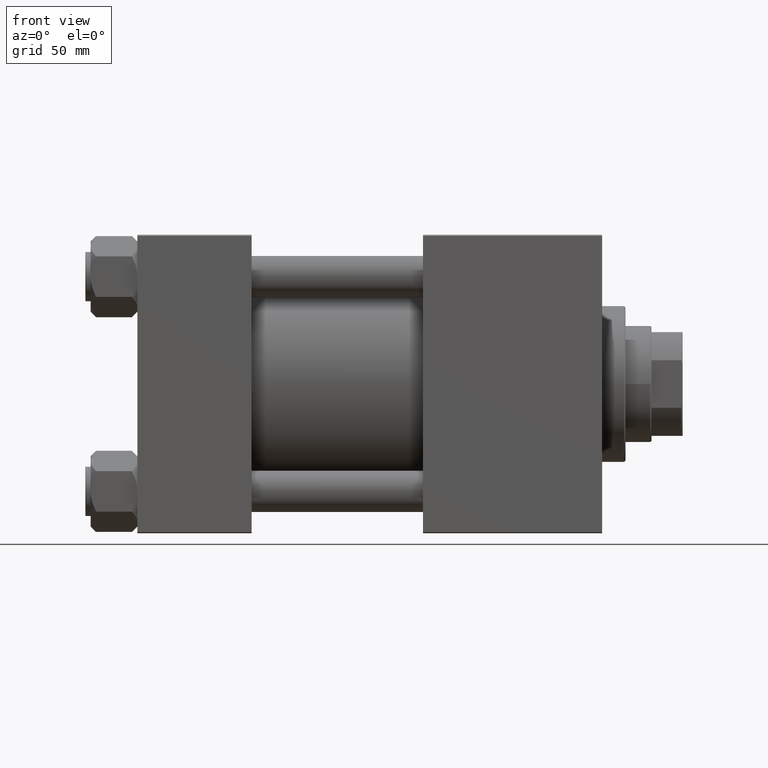
[diagram: clean part render]
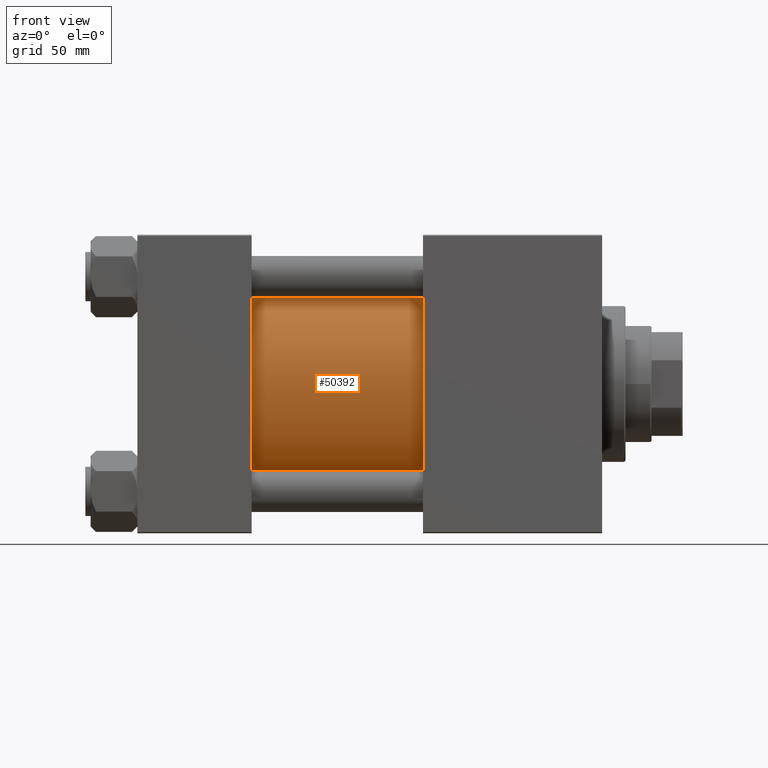
[diagram: same view with one face highlighted and labeled with its STEP entity id]
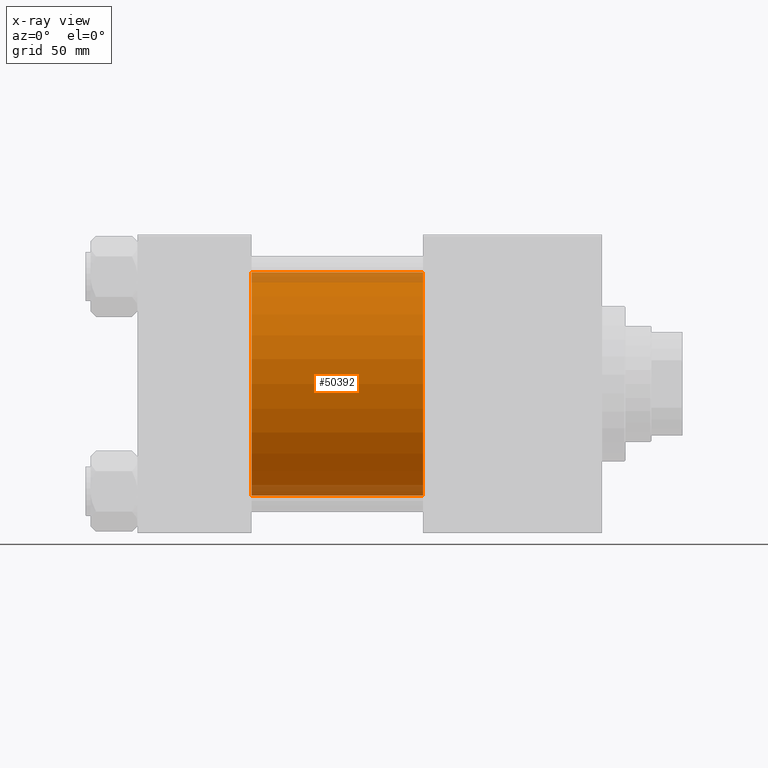
[diagram: x-ray of the same camera — body ghosted, the highlighted face saturated]
A machine part, front view. The second image highlights one B-rep face of the part: STEP entity #50392.
The next image is the same camera in x-ray: the body ghosted, the highlighted face saturated — about 9% of this face is hidden behind the body in this view.
In plain terms, the highlighted cylindrical surface (partial cylindrical patch) has radius 43 mm, axis along (-1, -0, -0).
Its self-contained STEP definition (entity closure, byte-faithful):
#4151 = DIRECTION ( 'NONE',  ( -1.000000000000000000, -0.000000000000000000, -0.000000000000000000 ) ) ;
#4498 = EDGE_LOOP ( 'NONE', ( #19678, #9954, #25651, #30387 ) ) ;
#4758 = DIRECTION ( 'NONE',  ( 0.000000000000000000, 0.000000000000000000, 1.000000000000000000 ) ) ;
#4779 = CIRCLE ( 'NONE', #48942, 43.00000000000000000 ) ;
#6227 = VERTEX_POINT ( 'NONE', #45924 ) ;
#6946 = VERTEX_POINT ( 'NONE', #8328 ) ;
#7618 = DIRECTION ( 'NONE',  ( -1.000000000000000000, -0.000000000000000000, -0.000000000000000000 ) ) ;
#7979 = CARTESIAN_POINT ( 'NONE',  ( 110.0000000000000000, 2.663896022368408223E-15, -43.00000000000000000 ) ) ;
#8026 = EDGE_CURVE ( 'NONE', #6227, #6946, #41244, .T. ) ;
#8328 = CARTESIAN_POINT ( 'NONE',  ( 44.00000000000000000, 2.663896022368408223E-15, -43.00000000000000000 ) ) ;
#9954 = ORIENTED_EDGE ( 'NONE', *, *, #18340, .F. ) ;
#12055 = VERTEX_POINT ( 'NONE', #24972 ) ;
#12810 = CYLINDRICAL_SURFACE ( 'NONE', #35408, 43.00000000000000000 ) ;
#15630 = VERTEX_POINT ( 'NONE', #17528 ) ;
#16542 = DIRECTION ( 'NONE',  ( 1.000000000000000000, -0.000000000000000000, 0.000000000000000000 ) ) ;
#17528 = CARTESIAN_POINT ( 'NONE',  ( 110.0000000000000000, 2.663896022368408223E-15, -43.00000000000000000 ) ) ;
#18340 = EDGE_CURVE ( 'NONE', #12055, #15630, #4779, .T. ) ;
#18748 = VECTOR ( 'NONE', #4151, 1000.000000000000000 ) ;
#19678 = ORIENTED_EDGE ( 'NONE', *, *, #34957, .F. ) ;
#23534 = DIRECTION ( 'NONE',  ( 0.000000000000000000, 0.000000000000000000, -1.000000000000000000 ) ) ;
#24039 = DIRECTION ( 'NONE',  ( 1.000000000000000000, 0.000000000000000000, 0.000000000000000000 ) ) ;
#24972 = CARTESIAN_POINT ( 'NONE',  ( 110.0000000000000000, -2.602085213965210642E-15, 43.00000000000000000 ) ) ;
#25651 = ORIENTED_EDGE ( 'NONE', *, *, #39823, .T. ) ;
#27463 = LINE ( 'NONE', #7979, #18748 ) ;
#28433 = DIRECTION ( 'NONE',  ( -1.000000000000000000, -0.000000000000000000, -0.000000000000000000 ) ) ;
#30387 = ORIENTED_EDGE ( 'NONE', *, *, #8026, .T. ) ;
#31273 = DIRECTION ( 'NONE',  ( 0.000000000000000000, 0.000000000000000000, 1.000000000000000000 ) ) ;
#31882 = CARTESIAN_POINT ( 'NONE',  ( 110.0000000000000000, -2.602085213965210642E-15, 43.00000000000000000 ) ) ;
#34957 = EDGE_CURVE ( 'NONE', #15630, #6946, #27463, .T. ) ;
#35030 = LINE ( 'NONE', #31882, #42544 ) ;
#35116 = CARTESIAN_POINT ( 'NONE',  ( 110.0000000000000000, -2.602085213965210642E-15, 0.000000000000000000 ) ) ;
#35408 = AXIS2_PLACEMENT_3D ( 'NONE', #35116, #28433, #31273 ) ;
#36126 = FACE_OUTER_BOUND ( 'NONE', #4498, .T. ) ;
#38889 = CARTESIAN_POINT ( 'NONE',  ( 110.0000000000000000, -2.602085213965210642E-15, 0.000000000000000000 ) ) ;
#39823 = EDGE_CURVE ( 'NONE', #12055, #6227, #35030, .T. ) ;
#41244 = CIRCLE ( 'NONE', #46168, 43.00000000000000000 ) ;
#42544 = VECTOR ( 'NONE', #7618, 1000.000000000000000 ) ;
#45924 = CARTESIAN_POINT ( 'NONE',  ( 44.00000000000000000, -2.602085213965210642E-15, 43.00000000000000000 ) ) ;
#46168 = AXIS2_PLACEMENT_3D ( 'NONE', #47537, #16542, #4758 ) ;
#47537 = CARTESIAN_POINT ( 'NONE',  ( 44.00000000000000000, -2.602085213965210642E-15, 0.000000000000000000 ) ) ;
#48942 = AXIS2_PLACEMENT_3D ( 'NONE', #38889, #24039, #23534 ) ;
#50392 = ADVANCED_FACE ( 'NONE', ( #36126 ), #12810, .T. ) ;